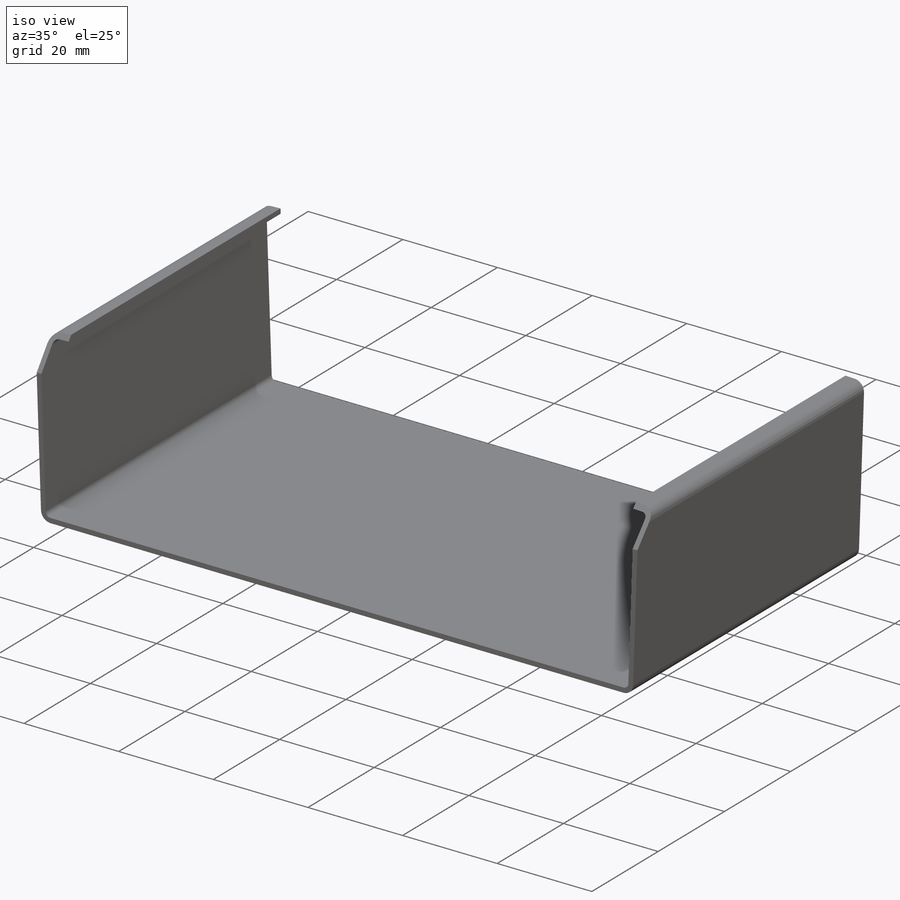
[diagram: iso view]
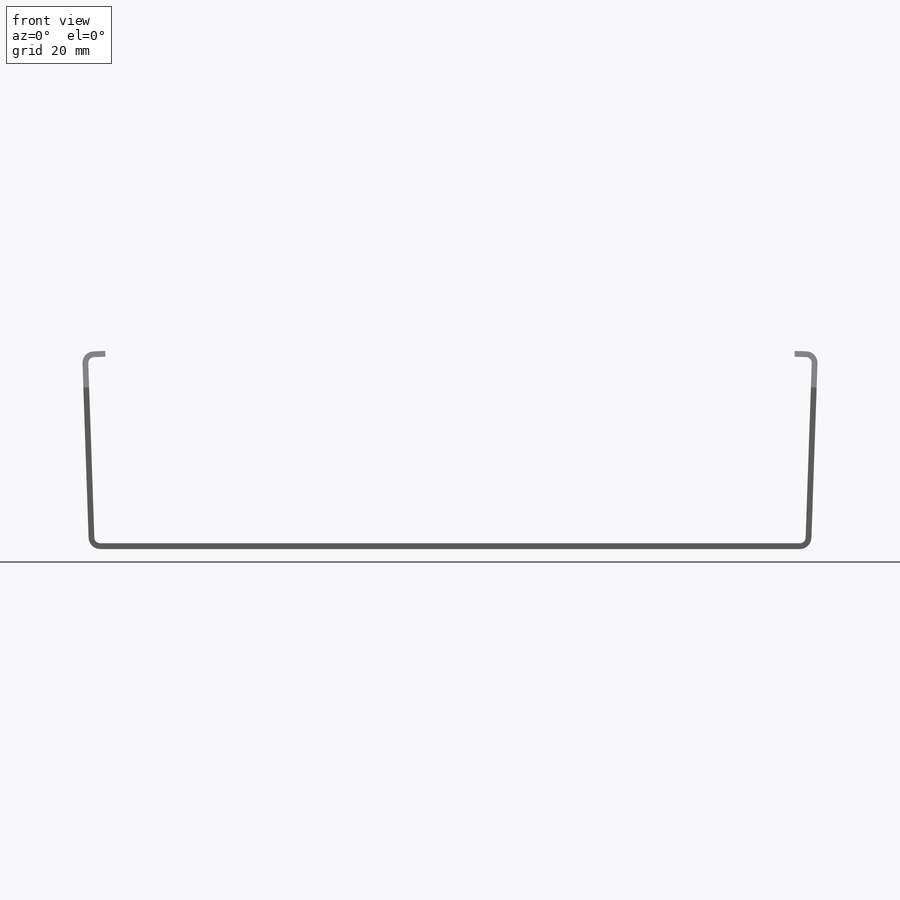
[diagram: front view]
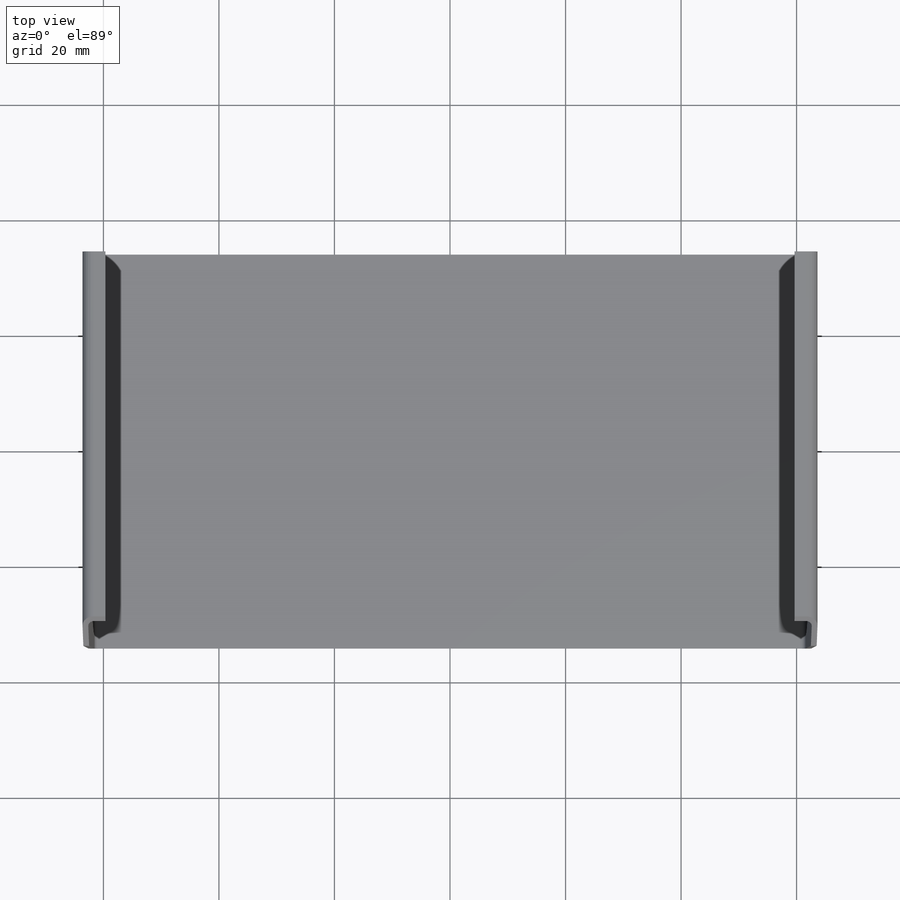
[diagram: top view]
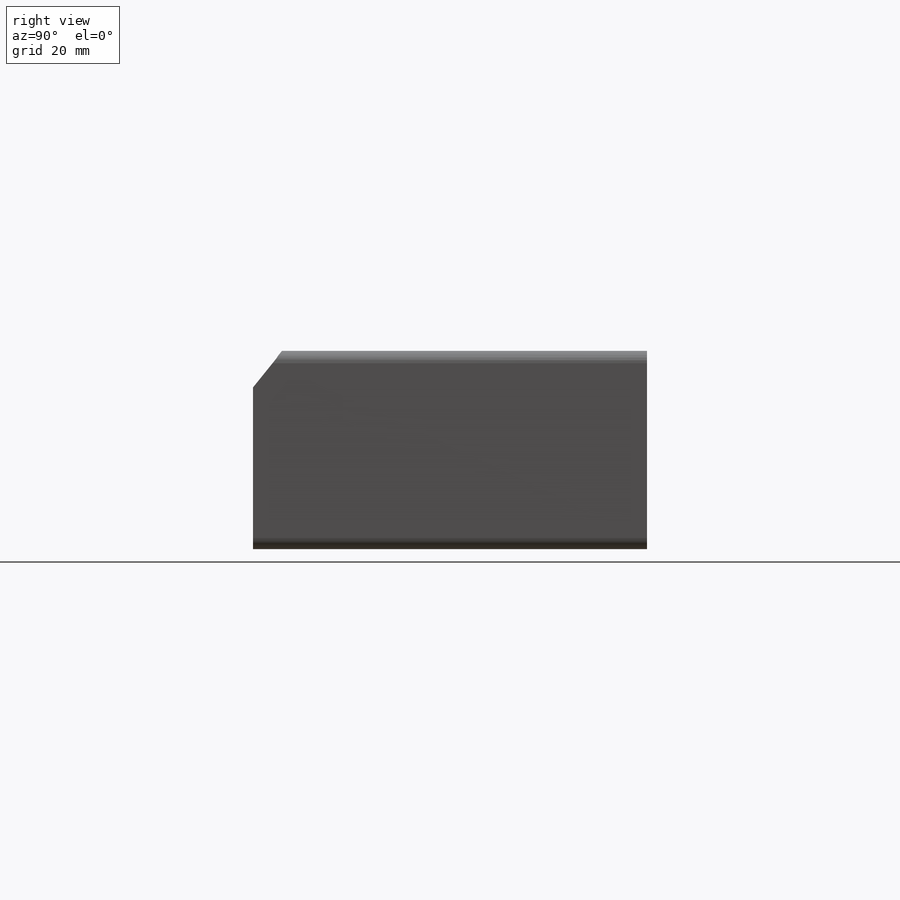
[diagram: right view]
SOLIDWORKS PART (.sldprt)
format: sldprt  version: not decoded by parser v0  size: 1,010,176 bytes
history: native  units: mm
features: sketch x3, material x1, extrude x1, cut_extrude x1, mirror x1, plane x1 (+12 scaffold rows collapsed)
feature tree (20):
  scaffold x12  (default folders/planes/origin — collapsed)
  material  "Material <not specified>"
  sketch  "Sketch1"  dims[c1.D7=2.0mm c1.D1=50.0mm c1.D2=~36.608947mm c2.D2=90.0deg c3.D2=~4.607276mm c4.D2=90.0deg c4.D3=62.5mm c4.D4=63.693mm c4.D5=~36.317874mm c5.D5=~91.881423deg c6.D5=34.3mm c6.D6=4.0mm c6.D8=1.0mm]
  extrude  "Boss-Extrude1"  Depth=68.2mm
  sketch  "Sketch2"  dims[D1=5.0mm D2=6.2mm]
  cut_extrude  "Cut-Extrude1"  Depth=7mm
  mirror  "Mirror1"
  plane  "Plane1"
  sketch  "Sketch6"  dims[c1.D5=5.1mm c1.D1=~121.137256mm c1.D2=~60.568628mm c1.D3=25.05mm c1.D4=45.0mm c2.D3=25.05mm c2.D4=45.0mm c3.D3=25.05mm]
decode coverage: 5 of 6 modeling features carry decoded parameters
note: ~ marks probable driven/reference dimensions
note: suppression state not decoded; provenance and decode notes live in map.json
